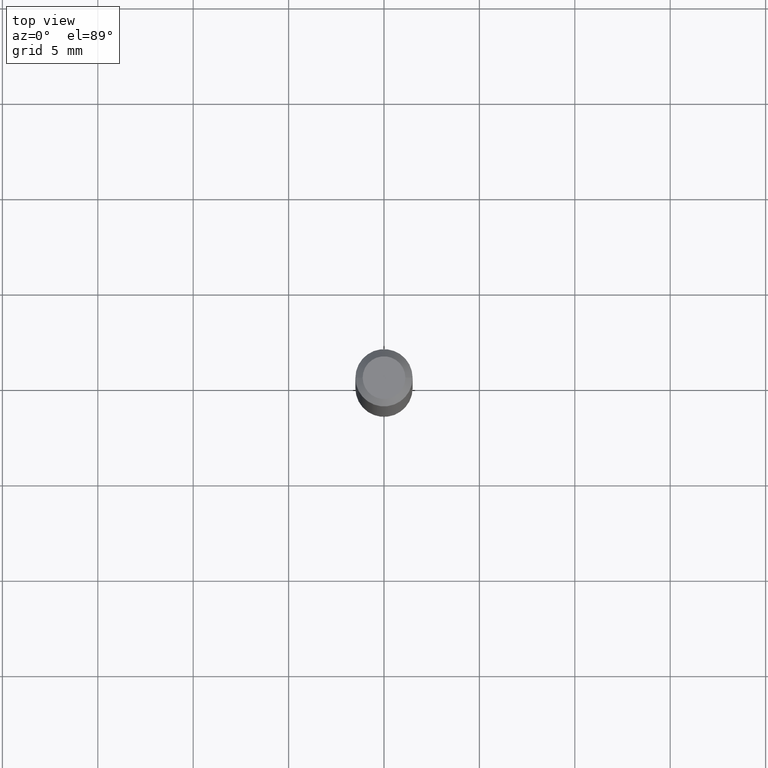
[diagram: clean part render]
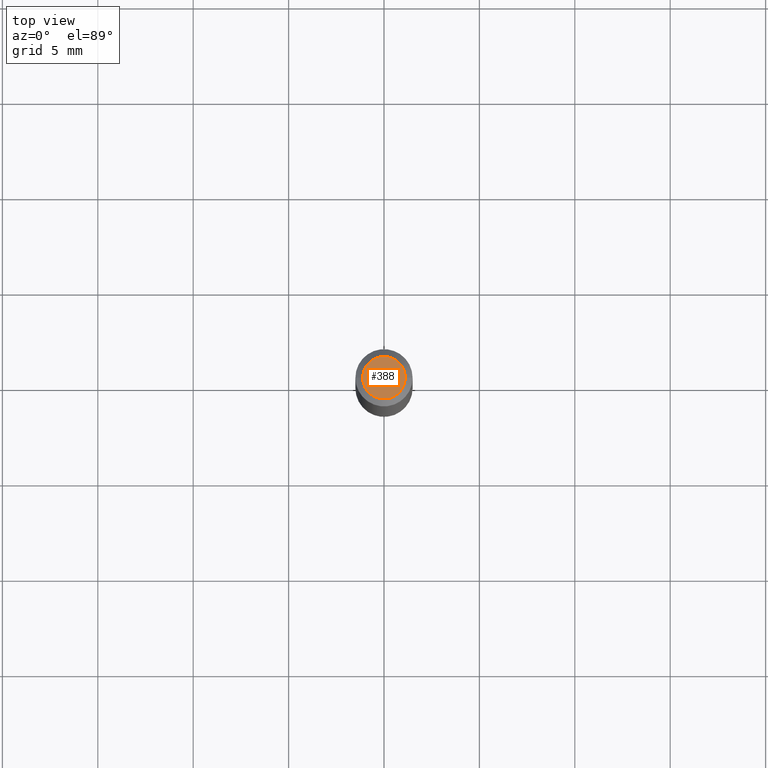
[diagram: same view with one face highlighted and labeled with its STEP entity id]
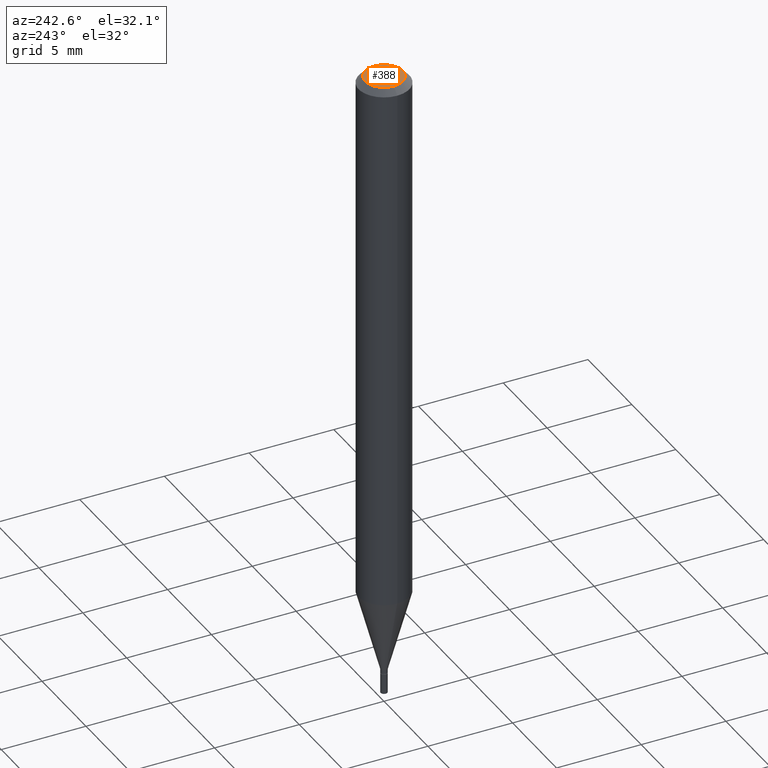
[diagram: same view with one face highlighted and labeled with its STEP entity id]
A machine part, top view. The second image highlights one B-rep face of the part: STEP entity #388.
A second angle (auxiliary view) of the same face is appended — the face is thin or edge-on in the first view.
In plain terms, the highlighted planar face has unit normal (0, -0, -1).
Its self-contained STEP definition (entity closure, byte-faithful):
#16 = AXIS2_PLACEMENT_3D ( 'NONE', #34, #25, #377 ) ;
#22 = DIRECTION ( 'NONE',  ( 1.000000000000000000, -6.982962677686265922E-15, 4.888540261209747396E-29 ) ) ;
#25 = DIRECTION ( 'NONE',  ( -2.445468806185136597E-29, 3.491481338843145583E-15, 1.000000000000000000 ) ) ;
#34 = CARTESIAN_POINT ( 'NONE',  ( 2.842653332627866660E-45, -4.058555577796679728E-31, -1.162416517208545723E-16 ) ) ;
#48 = EDGE_CURVE ( 'NONE', #55, #91, #274, .T. ) ;
#50 = DIRECTION ( 'NONE',  ( -1.000000000000000000, 6.982962677686265922E-15, -4.876176775795935793E-29 ) ) ;
#55 = VERTEX_POINT ( 'NONE', #207 ) ;
#82 = AXIS2_PLACEMENT_3D ( 'NONE', #304, #120, #22 ) ;
#91 = VERTEX_POINT ( 'NONE', #386 ) ;
#117 = DIRECTION ( 'NONE',  ( 2.438088387897960049E-29, -3.491481338843145188E-15, -1.000000000000000000 ) ) ;
#120 = DIRECTION ( 'NONE',  ( -2.445468806185136597E-29, 3.491481338843145583E-15, 1.000000000000000000 ) ) ;
#121 = ORIENTED_EDGE ( 'NONE', *, *, #361, .T. ) ;
#157 = AXIS2_PLACEMENT_3D ( 'NONE', #297, #117, #50 ) ;
#207 = CARTESIAN_POINT ( 'NONE',  ( -0.04404999999999999888, 3.337856159934032167E-16, -1.162416517208568157E-16 ) ) ;
#231 = ORIENTED_EDGE ( 'NONE', *, *, #48, .T. ) ;
#255 = PLANE ( 'NONE',  #157 ) ;
#274 = CIRCLE ( 'NONE', #16, 0.04404999999999999888 ) ;
#297 = CARTESIAN_POINT ( 'NONE',  ( 3.075995059520799729E-16, 0.04404999999999999888, -2.119205788364678519E-16 ) ) ;
#304 = CARTESIAN_POINT ( 'NONE',  ( 2.842653332627866660E-45, -4.058555577796679728E-31, -1.162416517208545723E-16 ) ) ;
#359 = EDGE_LOOP ( 'NONE', ( #231, #121 ) ) ;
#361 = EDGE_CURVE ( 'NONE', #91, #55, #382, .T. ) ;
#377 = DIRECTION ( 'NONE',  ( 1.000000000000000000, -6.982962677686265922E-15, 4.888540261209747396E-29 ) ) ;
#382 = CIRCLE ( 'NONE', #82, 0.04404999999999999888 ) ;
#386 = CARTESIAN_POINT ( 'NONE',  ( 0.04404999999999999888, -3.798447818264462051E-16, -1.162416517208521811E-16 ) ) ;
#388 = ADVANCED_FACE ( 'NONE', ( #411 ), #255, .F. ) ;
#411 = FACE_OUTER_BOUND ( 'NONE', #359, .T. ) ;